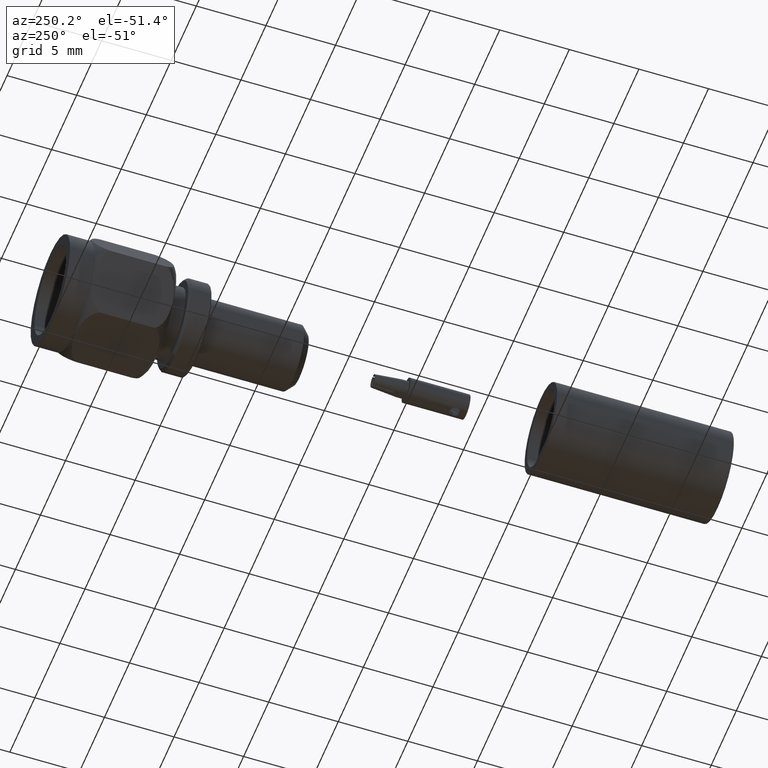
[diagram: clean part render]
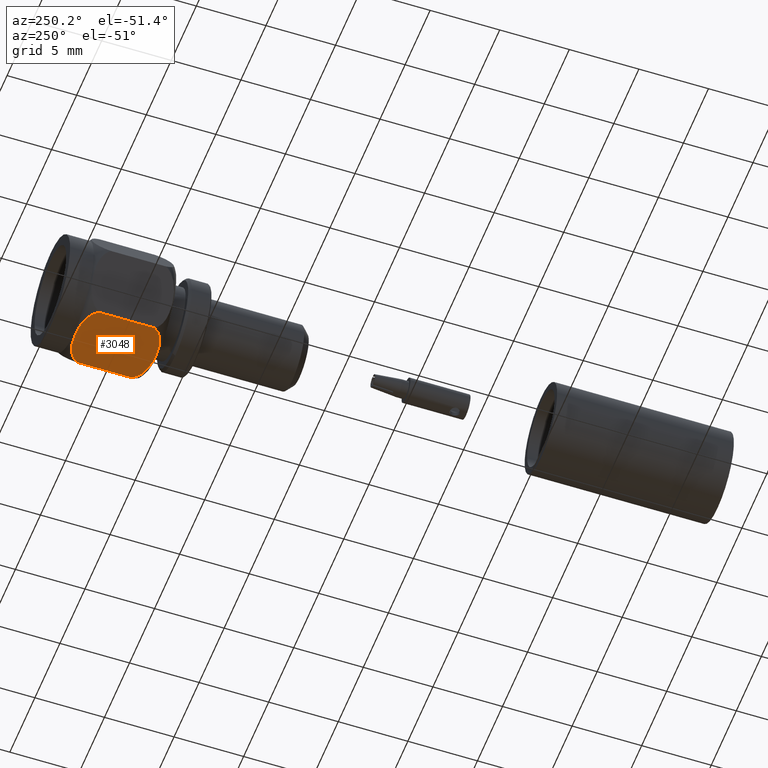
[diagram: same view with one face highlighted and labeled with its STEP entity id]
A machine part, auxiliary view. The second image highlights one B-rep face of the part: STEP entity #3048.
In plain terms, the highlighted planar face has unit normal (0, 0, 1).
Its self-contained STEP definition (entity closure, byte-faithful):
#27 = CARTESIAN_POINT ( 'NONE',  ( 0.09006664199358174700, 0.07749999999999999900, -0.1560000000000000000 ) ) ;
#30 = VERTEX_POINT ( 'NONE', #27 ) ;
#1105 = B_SPLINE_CURVE_WITH_KNOTS ( 'NONE', 3,
 ( #1161, #1160, #1159, #1158, #1157, #1156, #1155, #1154, #1153, #1152, #1151, #1150 ),
 .UNSPECIFIED., .F., .F.,
 ( 4, 2, 2, 2, 2, 4 ),
 ( 0.009407508188636806000, 0.009726627086598592700, 0.01004574598456037900, 0.01068398378048395300, 0.01132222157640752600, 0.01196045937233110000 ),
 .UNSPECIFIED. ) ;
#1108 = DIRECTION ( 'NONE',  ( -0.0000000000000000000, -1.000000000000000000, -0.0000000000000000000 ) ) ;
#1109 = VECTOR ( 'NONE', #1108, 39.37007874015748100 ) ;
#1110 = CARTESIAN_POINT ( 'NONE',  ( 0.09006664199358148400, 0.1174999999999999900, -0.1560000000000000000 ) ) ;
#1121 = LINE ( 'NONE', #1110, #1109 ) ;
#1130 = CARTESIAN_POINT ( 'NONE',  ( -0.09006664199358141400, -0.07749999999999999900, -0.1560000000000001900 ) ) ;
#1131 = CARTESIAN_POINT ( 'NONE',  ( -0.08810921443242961100, -0.08126598646297125700, -0.1560000000000000000 ) ) ;
#1132 = CARTESIAN_POINT ( 'NONE',  ( -0.08551607731204419200, -0.08475501360076190300, -0.1560000000000000000 ) ) ;
#1133 = CARTESIAN_POINT ( 'NONE',  ( -0.07968664662947878800, -0.09085939706229133300, -0.1560000000000000300 ) ) ;
#1134 = CARTESIAN_POINT ( 'NONE',  ( -0.07643786778567879200, -0.09352381180593245800, -0.1560000000000000000 ) ) ;
#1135 = CARTESIAN_POINT ( 'NONE',  ( -0.06943181440683787700, -0.09826238547170501600, -0.1559999999999999400 ) ) ;
#1136 = CARTESIAN_POINT ( 'NONE',  ( -0.06566920181682738000, -0.1003278652554597100, -0.1560000000000000000 ) ) ;
#1137 = CARTESIAN_POINT ( 'NONE',  ( -0.05797516597332789300, -0.1038690676081856400, -0.1560000000000000000 ) ) ;
#1138 = CARTESIAN_POINT ( 'NONE',  ( -0.05401089938936658200, -0.1053666102901036800, -0.1560000000000000000 ) ) ;
#1139 = CARTESIAN_POINT ( 'NONE',  ( -0.04184211199333758700, -0.1092164952190137100, -0.1560000000000000000 ) ) ;
#1140 = CARTESIAN_POINT ( 'NONE',  ( -0.03356329900518011800, -0.1108820980434391800, -0.1559999999999999400 ) ) ;
#1141 = CARTESIAN_POINT ( 'NONE',  ( -0.01689368606618365700, -0.1130540220334257000, -0.1560000000000000000 ) ) ;
#1142 = CARTESIAN_POINT ( 'NONE',  ( -0.008480627520290839200, -0.1135572233053825900, -0.1560000000000000000 ) ) ;
#1143 = CARTESIAN_POINT ( 'NONE',  ( 0.0000000000000000000, -0.1135572233053825900, -0.1560000000000000000 ) ) ;
#1144 = CARTESIAN_POINT ( 'NONE',  ( -0.09006664199358141400, -0.07749999999999999900, -0.1560000000000001900 ) ) ;
#1146 = LINE ( 'NONE', #1191, #1190 ) ;
#1149 = B_SPLINE_CURVE_WITH_KNOTS ( 'NONE', 3,
 ( #1143, #1142, #1141, #1140, #1139, #1138, #1137, #1136, #1135, #1134, #1133, #1132, #1131, #1130 ),
 .UNSPECIFIED., .F., .F.,
 ( 4, 2, 2, 2, 2, 2, 4 ),
 ( 0.0000000000000000000, 0.0006404755202106985700, 0.001280951040421397100, 0.001601188800526746600, 0.001921426560632096500, 0.002241664320737445700, 0.002561902080842795600 ),
 .UNSPECIFIED. ) ;
#1150 = CARTESIAN_POINT ( 'NONE',  ( 0.0000000000000000000, 0.1135572233053825900, -0.1560000000000000000 ) ) ;
#1151 = CARTESIAN_POINT ( 'NONE',  ( -0.008450997494515661100, 0.1135572233053825800, -0.1559999999999999400 ) ) ;
#1152 = CARTESIAN_POINT ( 'NONE',  ( -0.01689304499247248600, 0.1130547850739233900, -0.1560000000000000000 ) ) ;
#1153 = CARTESIAN_POINT ( 'NONE',  ( -0.03359171387172954500, 0.1108777151575356900, -0.1560000000000000000 ) ) ;
#1154 = CARTESIAN_POINT ( 'NONE',  ( -0.04194874959850780600, 0.1091863545924822700, -0.1559999999999999400 ) ) ;
#1155 = CARTESIAN_POINT ( 'NONE',  ( -0.05805035726873620400, 0.1040850150126289700, -0.1560000000000000300 ) ) ;
#1156 = CARTESIAN_POINT ( 'NONE',  ( -0.06584102524757821900, 0.1006816729264389300, -0.1560000000000000600 ) ) ;
#1157 = CARTESIAN_POINT ( 'NONE',  ( -0.07640472395876497800, 0.09355085670352240900, -0.1560000000000000600 ) ) ;
#1158 = CARTESIAN_POINT ( 'NONE',  ( -0.07967098343096555600, 0.09087574840599513300, -0.1560000000000000300 ) ) ;
#1159 = CARTESIAN_POINT ( 'NONE',  ( -0.08553115326291996200, 0.08473927719803114900, -0.1560000000000000000 ) ) ;
#1160 = CARTESIAN_POINT ( 'NONE',  ( -0.08810343659456754100, 0.08127710271557182800, -0.1560000000000000300 ) ) ;
#1161 = CARTESIAN_POINT ( 'NONE',  ( -0.09006664199358141400, 0.07749999999999999900, -0.1560000000000001900 ) ) ;
#1187 = CARTESIAN_POINT ( 'NONE',  ( -0.09006664199358141400, 0.07749999999999999900, -0.1560000000000001900 ) ) ;
#1189 = DIRECTION ( 'NONE',  ( -0.0000000000000000000, -1.000000000000000000, -0.0000000000000000000 ) ) ;
#1190 = VECTOR ( 'NONE', #1189, 39.37007874015748100 ) ;
#1191 = CARTESIAN_POINT ( 'NONE',  ( -0.09006664199358148400, 0.1174999999999999900, -0.1560000000000000000 ) ) ;
#1515 = CARTESIAN_POINT ( 'NONE',  ( 0.0000000000000000000, -0.1135572233053825900, -0.1560000000000000000 ) ) ;
#1516 = CARTESIAN_POINT ( 'NONE',  ( 0.008450997494515676700, -0.1135572233053825900, -0.1560000000000000000 ) ) ;
#1517 = CARTESIAN_POINT ( 'NONE',  ( 0.01689304499247247200, -0.1130547850739234100, -0.1560000000000000300 ) ) ;
#1518 = CARTESIAN_POINT ( 'NONE',  ( 0.03359171387172956600, -0.1108777151575356900, -0.1560000000000000300 ) ) ;
#1519 = CARTESIAN_POINT ( 'NONE',  ( 0.04194874959850784100, -0.1091863545924822400, -0.1560000000000000000 ) ) ;
#1520 = CARTESIAN_POINT ( 'NONE',  ( 0.05805035726873630100, -0.1040850150126289100, -0.1560000000000000300 ) ) ;
#1521 = CARTESIAN_POINT ( 'NONE',  ( 0.06584102524757831600, -0.1006816729264388100, -0.1559999999999999400 ) ) ;
#1522 = CARTESIAN_POINT ( 'NONE',  ( 0.07640472395876506100, -0.09355085670352232500, -0.1560000000000000300 ) ) ;
#1523 = CARTESIAN_POINT ( 'NONE',  ( 0.07967098343096563900, -0.09087574840599503500, -0.1559999999999999400 ) ) ;
#1524 = CARTESIAN_POINT ( 'NONE',  ( 0.08553115326292004500, -0.08473927719803102400, -0.1560000000000000000 ) ) ;
#1525 = CARTESIAN_POINT ( 'NONE',  ( 0.08810343659456756900, -0.08127710271557171700, -0.1560000000000000300 ) ) ;
#1528 = CARTESIAN_POINT ( 'NONE',  ( 0.09006664199358174700, -0.07749999999999999900, -0.1560000000000000000 ) ) ;
#1529 = B_SPLINE_CURVE_WITH_KNOTS ( 'NONE', 3,
 ( #1528, #1525, #1524, #1523, #1522, #1521, #1520, #1519, #1518, #1517, #1516, #1515 ),
 .UNSPECIFIED., .F., .F.,
 ( 4, 2, 2, 2, 2, 4 ),
 ( 0.009407508188636802500, 0.009726627086598589300, 0.01004574598456037600, 0.01068398378048395100, 0.01132222157640752600, 0.01196045937233110000 ),
 .UNSPECIFIED. ) ;
#1551 = CARTESIAN_POINT ( 'NONE',  ( 0.09006664199358174700, -0.07749999999999999900, -0.1560000000000000000 ) ) ;
#1657 = CARTESIAN_POINT ( 'NONE',  ( 0.0000000000000000000, -0.1135572233053825900, -0.1560000000000000000 ) ) ;
#1781 = CARTESIAN_POINT ( 'NONE',  ( 0.0000000000000000000, 0.1135572233053825900, -0.1560000000000000000 ) ) ;
#1857 = DIRECTION ( 'NONE',  ( 1.000000000000000000, 0.0000000000000000000, -0.0000000000000000000 ) ) ;
#1858 = DIRECTION ( 'NONE',  ( 0.0000000000000000000, 0.0000000000000000000, 1.000000000000000000 ) ) ;
#1859 = CARTESIAN_POINT ( 'NONE',  ( -0.09006664199358148400, 0.1174999999999999900, -0.1560000000000000000 ) ) ;
#1860 = AXIS2_PLACEMENT_3D ( 'NONE', #1859, #1858, #1857 ) ;
#1917 = FACE_OUTER_BOUND ( 'NONE', #3039, .T. ) ;
#1923 = CARTESIAN_POINT ( 'NONE',  ( 0.09006664199358174700, 0.07749999999999999900, -0.1560000000000000000 ) ) ;
#1924 = CARTESIAN_POINT ( 'NONE',  ( 0.08810921443242973600, 0.08126598646297117400, -0.1560000000000000000 ) ) ;
#1925 = CARTESIAN_POINT ( 'NONE',  ( 0.08551607731204424700, 0.08475501360076183300, -0.1559999999999999400 ) ) ;
#1926 = CARTESIAN_POINT ( 'NONE',  ( 0.07968664662947888600, 0.09085939706229126400, -0.1560000000000000000 ) ) ;
#1927 = CARTESIAN_POINT ( 'NONE',  ( 0.07643786778567889000, 0.09352381180593238900, -0.1559999999999999400 ) ) ;
#1928 = CARTESIAN_POINT ( 'NONE',  ( 0.06943181440683798800, 0.09826238547170500200, -0.1560000000000000300 ) ) ;
#1929 = CARTESIAN_POINT ( 'NONE',  ( 0.06566920181682750500, 0.1003278652554597100, -0.1560000000000000600 ) ) ;
#1930 = CARTESIAN_POINT ( 'NONE',  ( 0.05797516597332795500, 0.1038690676081856100, -0.1560000000000000300 ) ) ;
#1931 = CARTESIAN_POINT ( 'NONE',  ( 0.05401089938936663700, 0.1053666102901036900, -0.1560000000000000300 ) ) ;
#1932 = CARTESIAN_POINT ( 'NONE',  ( 0.04184211199333765000, 0.1092164952190137500, -0.1560000000000000300 ) ) ;
#1933 = CARTESIAN_POINT ( 'NONE',  ( 0.03356329900518016700, 0.1108820980434391700, -0.1559999999999999400 ) ) ;
#1934 = CARTESIAN_POINT ( 'NONE',  ( 0.01689368606618367500, 0.1130540220334257100, -0.1560000000000000000 ) ) ;
#1935 = CARTESIAN_POINT ( 'NONE',  ( 0.008480627520290858300, 0.1135572233053825900, -0.1560000000000000300 ) ) ;
#1936 = CARTESIAN_POINT ( 'NONE',  ( 0.0000000000000000000, 0.1135572233053825900, -0.1560000000000000000 ) ) ;
#1939 = PLANE ( 'NONE',  #1860 ) ;
#1941 = B_SPLINE_CURVE_WITH_KNOTS ( 'NONE', 3,
 ( #1936, #1935, #1934, #1933, #1932, #1931, #1930, #1929, #1928, #1927, #1926, #1925, #1924, #1923 ),
 .UNSPECIFIED., .F., .F.,
 ( 4, 2, 2, 2, 2, 2, 4 ),
 ( 0.0000000000000000000, 0.0006404755202106997600, 0.001280951040421399500, 0.001601188800526749200, 0.001921426560632098600, 0.002241664320737448700, 0.002561902080842799100 ),
 .UNSPECIFIED. ) ;
#2706 = ORIENTED_EDGE ( 'NONE', *, *, #2731, .F. ) ;
#2715 = EDGE_CURVE ( 'NONE', #30, #2962, #1121, .T. ) ;
#2721 = EDGE_CURVE ( 'NONE', #2736, #3030, #1105, .T. ) ;
#2723 = ORIENTED_EDGE ( 'NONE', *, *, #2721, .T. ) ;
#2724 = ORIENTED_EDGE ( 'NONE', *, *, #2728, .T. ) ;
#2725 = ORIENTED_EDGE ( 'NONE', *, *, #2964, .T. ) ;
#2728 = EDGE_CURVE ( 'NONE', #2982, #2734, #1149, .T. ) ;
#2731 = EDGE_CURVE ( 'NONE', #2736, #2734, #1146, .T. ) ;
#2732 = ORIENTED_EDGE ( 'NONE', *, *, #3035, .T. ) ;
#2733 = ORIENTED_EDGE ( 'NONE', *, *, #2715, .T. ) ;
#2734 = VERTEX_POINT ( 'NONE', #1144 ) ;
#2736 = VERTEX_POINT ( 'NONE', #1187 ) ;
#2962 = VERTEX_POINT ( 'NONE', #1551 ) ;
#2964 = EDGE_CURVE ( 'NONE', #2962, #2982, #1529, .T. ) ;
#2982 = VERTEX_POINT ( 'NONE', #1657 ) ;
#3030 = VERTEX_POINT ( 'NONE', #1781 ) ;
#3035 = EDGE_CURVE ( 'NONE', #3030, #30, #1941, .T. ) ;
#3039 = EDGE_LOOP ( 'NONE', ( #2706, #2723, #2732, #2733, #2725, #2724 ) ) ;
#3048 = ADVANCED_FACE ( 'NONE', ( #1917 ), #1939, .F. ) ;